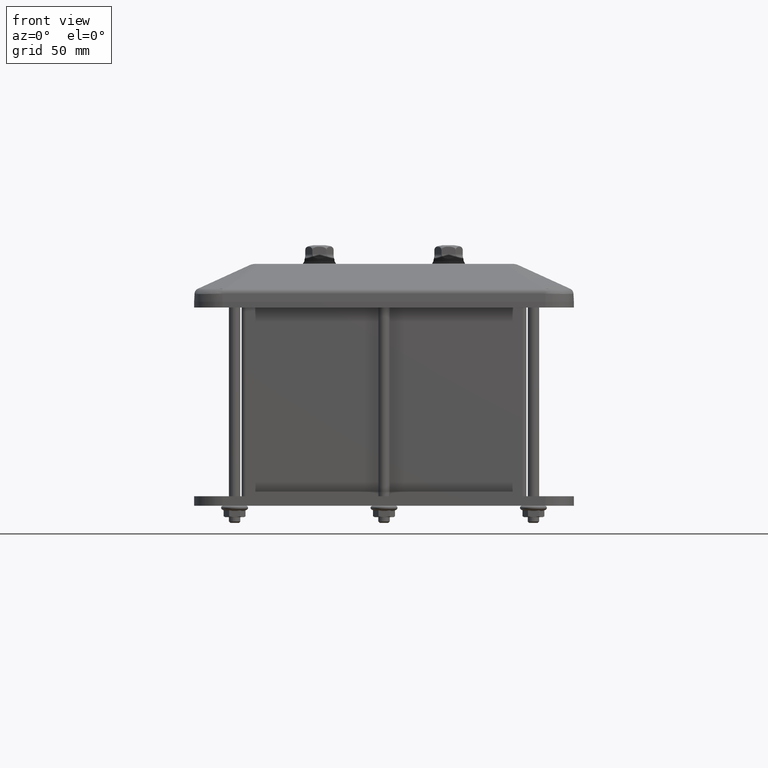
[diagram: clean part render]
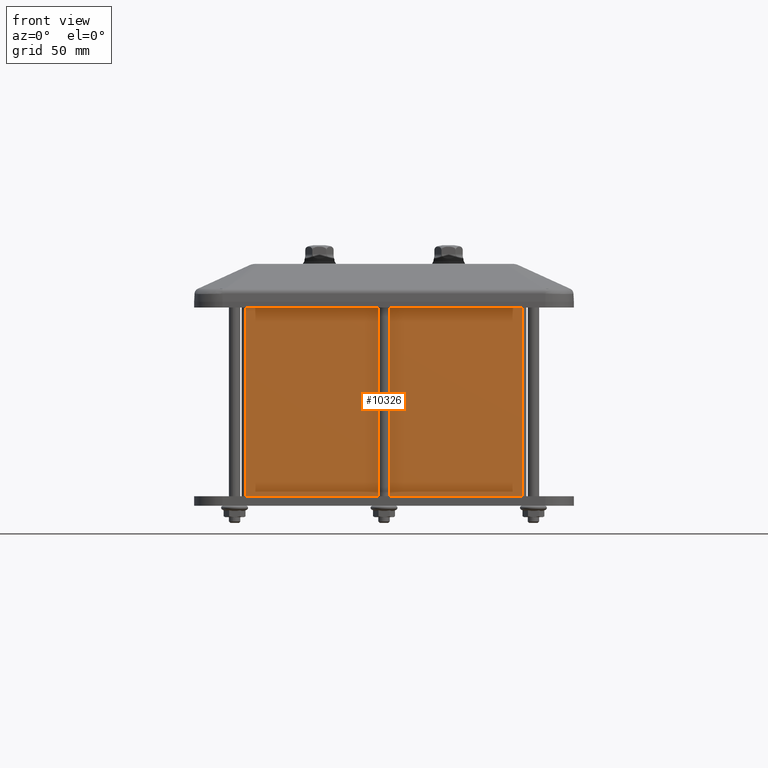
[diagram: same view with one face highlighted and labeled with its STEP entity id]
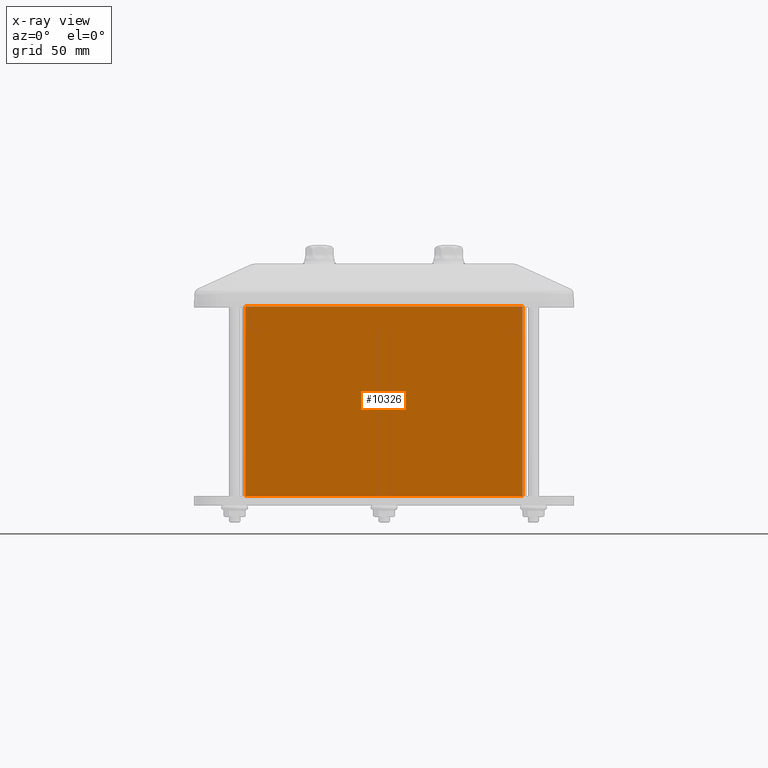
[diagram: x-ray of the same camera — body ghosted, the highlighted face saturated]
A machine part, front view. The second image highlights one B-rep face of the part: STEP entity #10326.
The next image is the same camera in x-ray: the body ghosted, the highlighted face saturated — about 0% of this face is hidden behind the body in this view.
In plain terms, the highlighted planar face has unit normal (0, -1, 0).
Its self-contained STEP definition (entity closure, byte-faithful):
#785=PLANE('',#11166);
#1187=FACE_OUTER_BOUND('',#1822,.T.);
#1822=EDGE_LOOP('',(#7529,#7530,#7531,#7532));
#2235=LINE('',#14337,#2907);
#2375=LINE('',#16104,#3047);
#2385=LINE('',#16129,#3057);
#2386=LINE('',#16131,#3058);
#2907=VECTOR('',#11745,10.);
#3047=VECTOR('',#12733,10.);
#3057=VECTOR('',#12761,10.);
#3058=VECTOR('',#12764,10.);
#4016=VERTEX_POINT('',#14334);
#4017=VERTEX_POINT('',#14336);
#4351=VERTEX_POINT('',#16101);
#4358=VERTEX_POINT('',#16127);
#4974=EDGE_CURVE('',#4016,#4017,#2235,.T.);
#5510=EDGE_CURVE('',#4351,#4016,#2375,.T.);
#5523=EDGE_CURVE('',#4358,#4017,#2385,.T.);
#5524=EDGE_CURVE('',#4358,#4351,#2386,.T.);
#7529=ORIENTED_EDGE('',*,*,#5524,.F.);
#7530=ORIENTED_EDGE('',*,*,#5523,.T.);
#7531=ORIENTED_EDGE('',*,*,#4974,.F.);
#7532=ORIENTED_EDGE('',*,*,#5510,.F.);
#10326=ADVANCED_FACE('',(#1187),#785,.T.);
#11166=AXIS2_PLACEMENT_3D('',#16130,#12762,#12763);
#11745=DIRECTION('',(-1.,0.,0.));
#12733=DIRECTION('',(0.,0.,-1.));
#12761=DIRECTION('',(0.,0.,-1.));
#12762=DIRECTION('center_axis',(0.,-1.,0.));
#12763=DIRECTION('ref_axis',(-1.,0.,0.));
#12764=DIRECTION('',(1.,0.,0.));
#14334=CARTESIAN_POINT('',(72.9,-122.812356905968,-119.2));
#14336=CARTESIAN_POINT('',(-72.9,-122.812356905968,-119.2));
#14337=CARTESIAN_POINT('',(72.9,-122.812356905968,-119.2));
#16101=CARTESIAN_POINT('',(72.9,-122.812356905968,-19.2));
#16104=CARTESIAN_POINT('',(72.9,-122.812356905968,-19.2));
#16127=CARTESIAN_POINT('',(-72.9,-122.812356905968,-19.2));
#16129=CARTESIAN_POINT('',(-72.9,-122.812356905968,-19.2));
#16130=CARTESIAN_POINT('Origin',(72.9,-122.812356905968,-19.2));
#16131=CARTESIAN_POINT('',(36.45,-122.812356905968,-19.2));